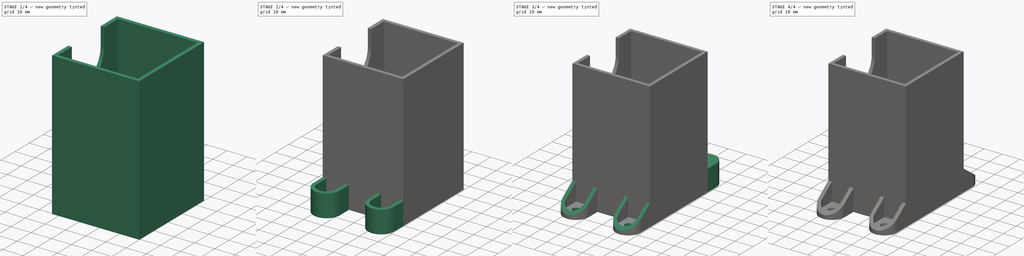
[diagram: build sequence overview — one tinted view per stage of 4, left to right]
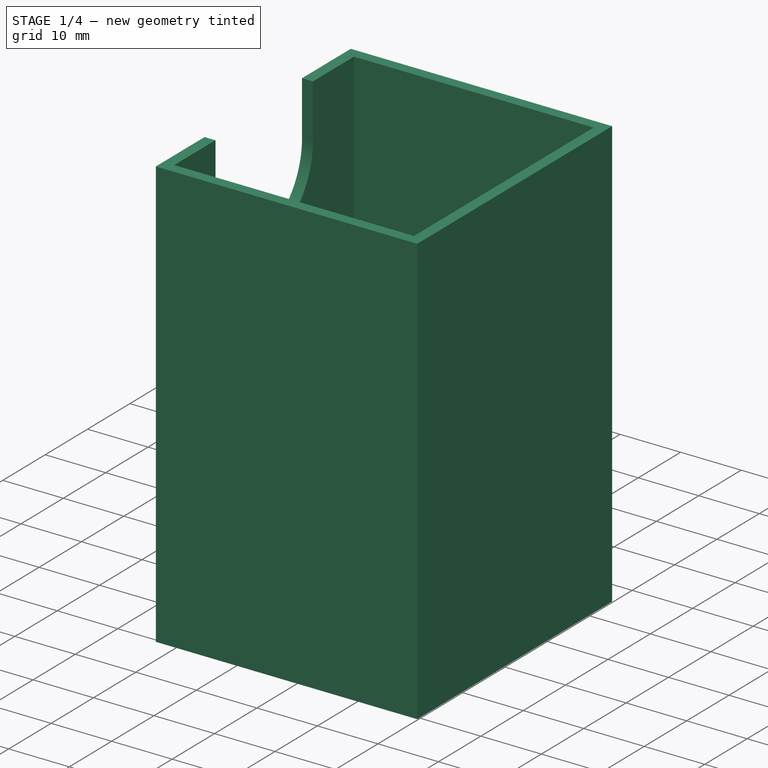
[diagram: stage 1 of 4 — iso view after this stage's code; geometry added in this stage tinted green]
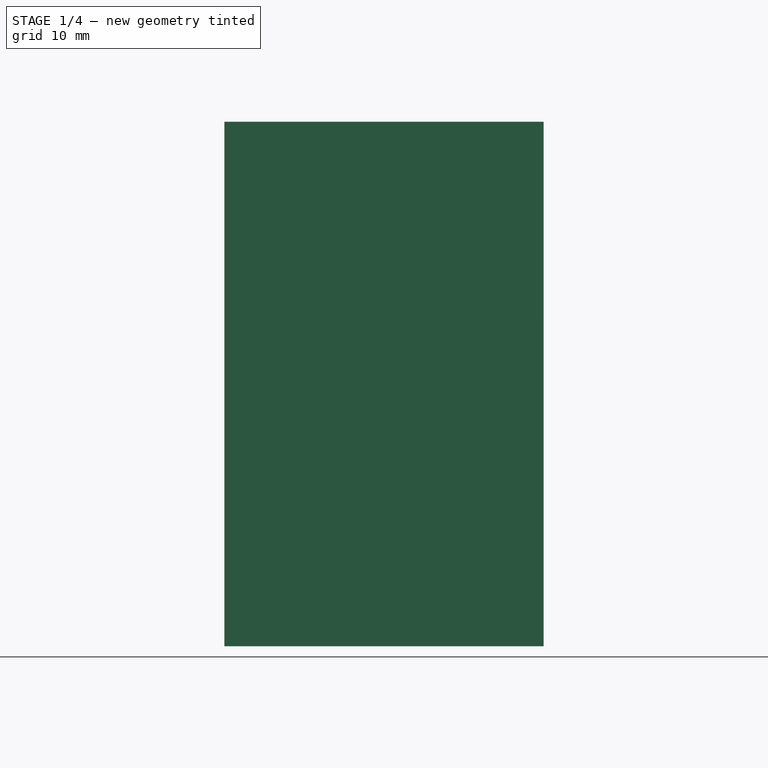
[diagram: stage 1 of 4 — front view after this stage's code; geometry added in this stage tinted green]
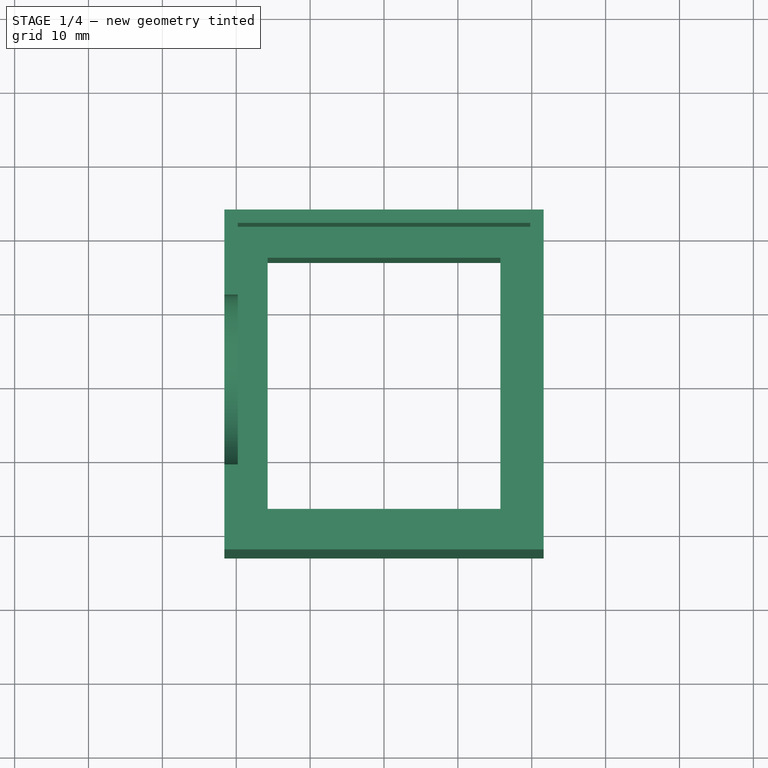
[diagram: stage 1 of 4 — top view after this stage's code; geometry added in this stage tinted green]
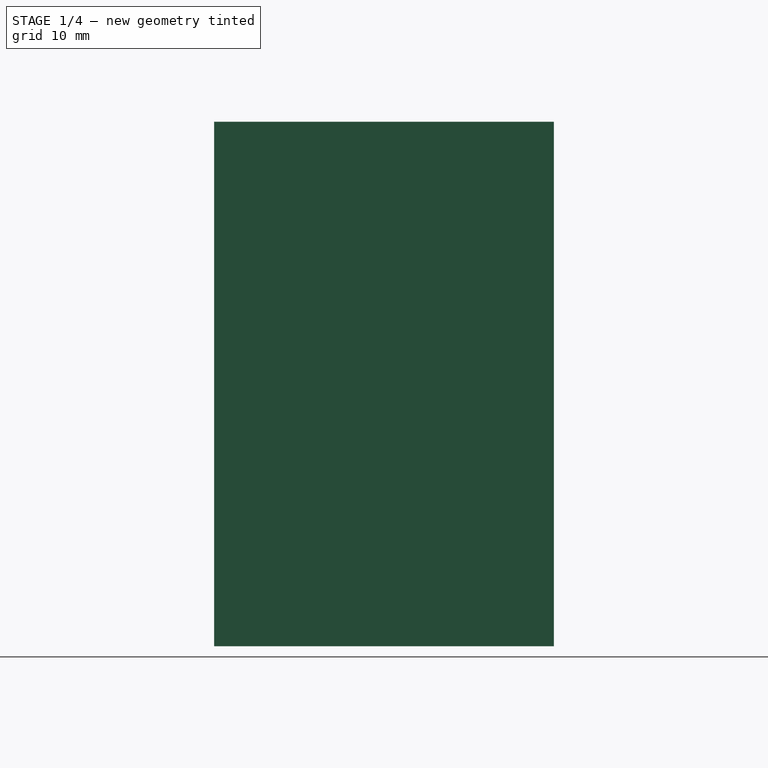
[diagram: stage 1 of 4 — right view after this stage's code; geometry added in this stage tinted green]
FCSTD DOCUMENT  (FreeCAD 0.15R4671 (Git))
Label: Motor Base
License: All rights reserved
LicenseURL: http://en.wikipedia.org/wiki/All_rights_reserved
objects: Sketcher::SketchObject×11, PartDesign::Pocket×7, PartDesign::Pad×4, PartDesign::Fillet×2
note: 35 computed .brp shape members not serialized (recipe doc carries the construction recipe); baked Part::Feature solids carry a one-line shape summary decoded from their .brp

FEATURE [Sketcher::SketchObject] Sketch
  sketch-geometry (8):
    g0: LineSegment StartX=-21.6 StartY=23 StartZ=0 EndX=21.6 EndY=23 EndZ=0
    g1: LineSegment StartX=21.6 StartY=23 StartZ=0 EndX=21.6 EndY=-23 EndZ=0
    g2: LineSegment StartX=21.6 StartY=-23 StartZ=0 EndX=-21.6 EndY=-23 EndZ=0
    g3: LineSegment StartX=-21.6 StartY=-23 StartZ=0 EndX=-21.6 EndY=23 EndZ=0
    g4: LineSegment StartX=-15.75 StartY=17 StartZ=0 EndX=15.75 EndY=17 EndZ=0
    g5: LineSegment StartX=15.75 StartY=17 StartZ=0 EndX=15.75 EndY=-17 EndZ=0
    g6: LineSegment StartX=15.75 StartY=-17 StartZ=0 EndX=-15.75 EndY=-17 EndZ=0
    g7: LineSegment StartX=-15.75 StartY=-17 StartZ=0 EndX=-15.75 EndY=17 EndZ=0
  constraints (24):
    c: Coincident(g0,g1)
    c: Coincident(g1,g2)
    c: Coincident(g2,g3)
    c: Coincident(g3,g0)
    c: Horizontal(g0)
    c: Horizontal(g2)
    c: Vertical(g1)
    c: Vertical(g3)
    c: Symmetric(g0,g0,g-2)
    c: Symmetric(g0,g1,g-1)
    c: DistanceY(g3) = 46
    c: DistanceX(g0) = 43.2
    c: Coincident(g4,g5)
    c: Coincident(g5,g6)
    c: Coincident(g6,g7)
    c: Coincident(g7,g4)
    c: Horizontal(g4)
    c: Horizontal(g6)
    c: Vertical(g5)
    c: Vertical(g7)
    c: Symmetric(g4,g4,g-2)
    c: Symmetric(g4,g6,g-1)
    c: DistanceX(g4) = 31.5
    c: DistanceY(g5) = -34
FEATURE [PartDesign::Pad] Pad
  Length = 41
  Length2 = 100
  Sketch = -> Sketch
  Type = 0
FEATURE [Sketcher::SketchObject] Sketch001
  ExternalGeometry = -> [Pad]
  Placement = pos=(0,0,41) rot=(0,0,1;0rad)
  Support = -> Pad [Face10]
  sketch-geometry (8):
    g0: LineSegment StartX=-21.6 StartY=23 StartZ=0 EndX=21.6 EndY=23 EndZ=0
    g1: LineSegment StartX=21.6 StartY=23 StartZ=0 EndX=21.6 EndY=-23 EndZ=0
    g2: LineSegment StartX=21.6 StartY=-23 StartZ=0 EndX=-21.6 EndY=-23 EndZ=0
    g3: LineSegment StartX=-21.6 StartY=-23 StartZ=0 EndX=-21.6 EndY=23 EndZ=0
    g4: LineSegment StartX=-19.8 StartY=21.2 StartZ=0 EndX=19.8 EndY=21.2 EndZ=0
    g5: LineSegment StartX=19.8 StartY=21.2 StartZ=0 EndX=19.8 EndY=-21.2 EndZ=0
    g6: LineSegment StartX=19.8 StartY=-21.2 StartZ=0 EndX=-19.8 EndY=-21.2 EndZ=0
    g7: LineSegment StartX=-19.8 StartY=-21.2 StartZ=0 EndX=-19.8 EndY=21.2 EndZ=0
  constraints (22):
    c: Coincident(g0,g1)
    c: Coincident(g1,g2)
    c: Coincident(g2,g3)
    c: Coincident(g3,g0)
    c: Horizontal(g0)
    c: Horizontal(g2)
    c: Vertical(g1)
    c: Vertical(g3)
    c: Coincident(g0,g-4)
    c: Coincident(g1,g-6)
    c: Coincident(g4,g5)
    c: Coincident(g5,g6)
    c: Coincident(g6,g7)
    c: Coincident(g7,g4)
    c: Horizontal(g4)
    c: Horizontal(g6)
    c: Vertical(g5)
    c: Vertical(g7)
    c: Symmetric(g4,g4,g-2)
    c: Symmetric(g4,g5,g-1)
    c: DistanceX(g4) = 39.6
    c: DistanceY(g5) = -42.4
FEATURE [PartDesign::Pad] Pad001
  Length = 30
  Length2 = 100
  Sketch = -> Sketch001
  Type = 0
FEATURE [Sketcher::SketchObject] Sketch002
  ExternalGeometry = -> [Pad001]
  Placement = pos=(-21.6,0,0) rot=(0.57735,-0.57735,-0.57735;2.0944rad)
  Support = -> Pad001 [Face13]
  sketch-geometry (5):
    g0: Circle [constr] CenterX=0 CenterY=62 CenterZ=0 NormalX=0 NormalY=0 NormalZ=1 Radius=11.5
    g1: LineSegment StartX=-11.5 StartY=71 StartZ=0 EndX=11.5 EndY=71 EndZ=0
    g2: LineSegment StartX=11.5 StartY=71 StartZ=0 EndX=11.5 EndY=62 EndZ=0
    g3: LineSegment StartX=-11.5 StartY=62 StartZ=0 EndX=-11.5 EndY=71 EndZ=0
    g4: ArcOfCircle CenterX=0 CenterY=62 CenterZ=0 NormalX=0 NormalY=0 NormalZ=1 Radius=11.5 StartAngle=3.14159 EndAngle=6.28319
  constraints (16):
    c: PointOnObject(g0,g-2)
    c: Radius(g0) = 11.5
    c: DistanceY(g-4,g0) = 21
    c: Coincident(g1,g2)
    c: Coincident(g3,g1)
    c: Horizontal(g1)
    c: Vertical(g2)
    c: Vertical(g3)
    c: PointOnObject(g1,g-3)
    c: PointOnObject(g2,g0)
    c: PointOnObject(g3,g0)
    c: Tangent(g0,g3)
    c: Tangent(g0,g2)
    c: Coincident(g4,g0)
    c: Coincident(g4,g3)
    c: Coincident(g4,g2)
FEATURE [PartDesign::Pocket] Pocket
  Length = 5
  Sketch = -> Sketch002
  Type = 0
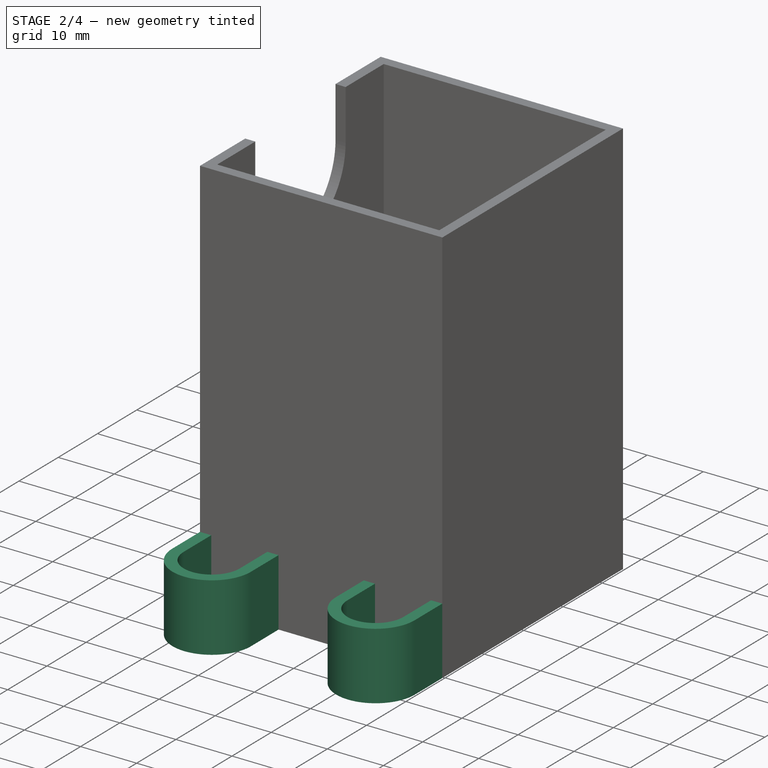
[diagram: stage 2 of 4 — iso view after this stage's code; geometry added in this stage tinted green]
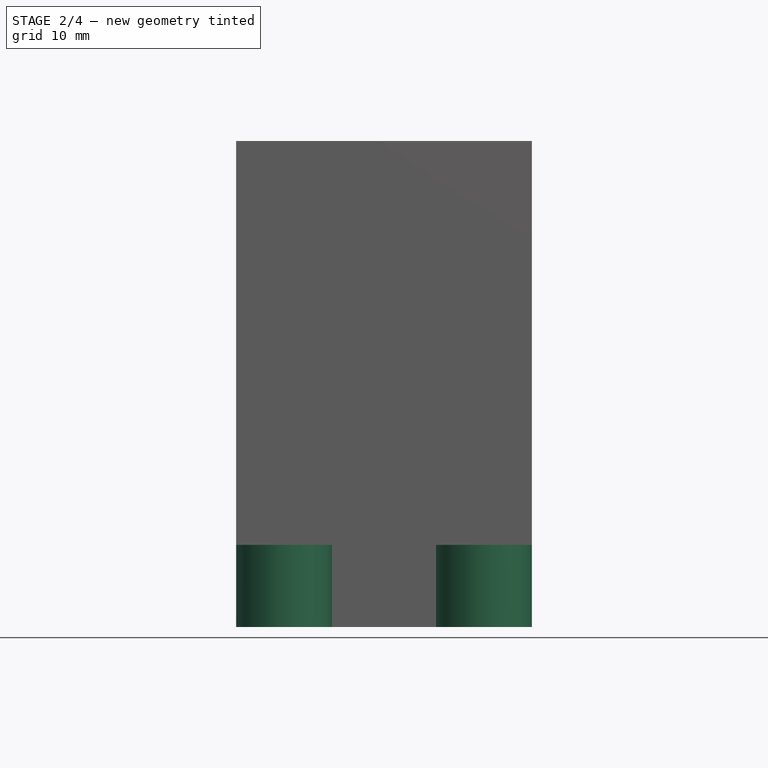
[diagram: stage 2 of 4 — front view after this stage's code; geometry added in this stage tinted green]
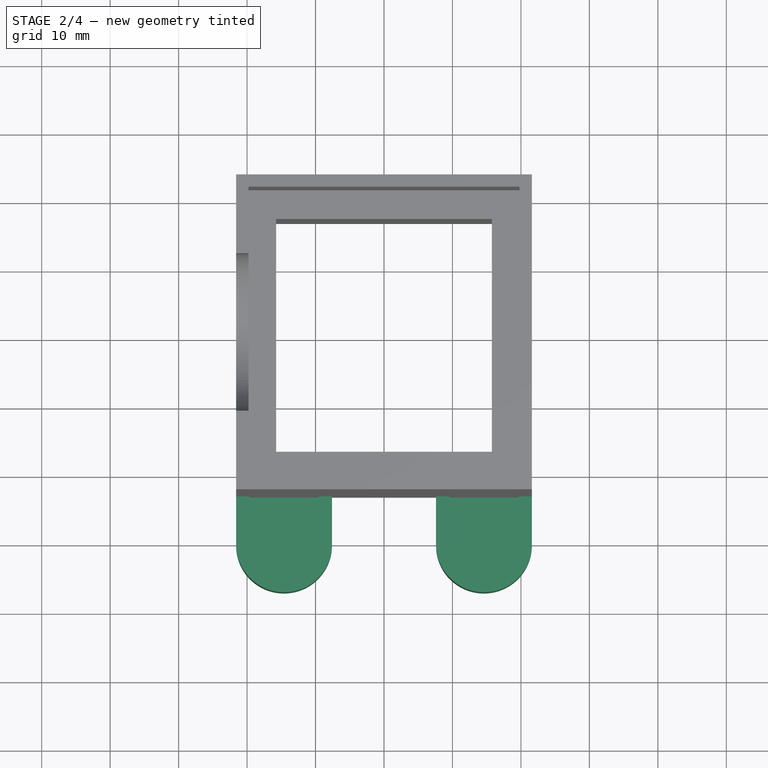
[diagram: stage 2 of 4 — top view after this stage's code; geometry added in this stage tinted green]
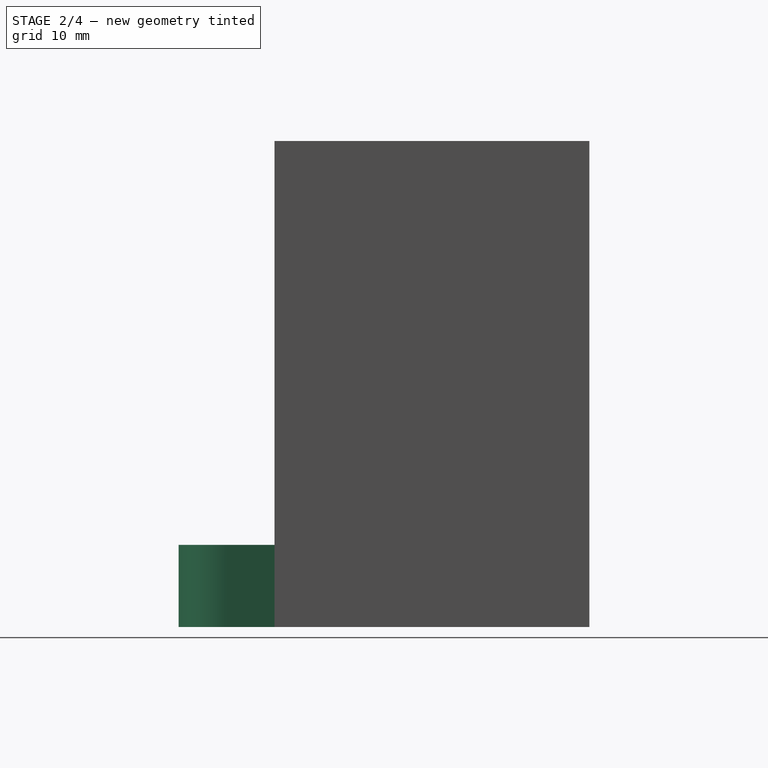
[diagram: stage 2 of 4 — right view after this stage's code; geometry added in this stage tinted green]
FEATURE [Sketcher::SketchObject] Sketch003
  ExternalGeometry = -> [Pocket]
  Placement = pos=(0,-23,0) rot=(1,0,0;1.5708rad)
  Support = -> Pocket [Face4]
  sketch-geometry (8):
    g0: LineSegment StartX=-21.6 StartY=0 StartZ=0 EndX=-7.6 EndY=0 EndZ=0
    g1: LineSegment StartX=-7.6 StartY=0 StartZ=0 EndX=-7.6 EndY=12 EndZ=0
    g2: LineSegment StartX=-7.6 StartY=12 StartZ=0 EndX=-21.6 EndY=12 EndZ=0
    g3: LineSegment StartX=-21.6 StartY=12 StartZ=0 EndX=-21.6 EndY=0 EndZ=0
    g4: LineSegment StartX=21.6 StartY=0 StartZ=0 EndX=7.6 EndY=0 EndZ=0
    g5: LineSegment StartX=7.6 StartY=0 StartZ=0 EndX=7.6 EndY=12 EndZ=0
    g6: LineSegment StartX=7.6 StartY=12 StartZ=0 EndX=21.6 EndY=12 EndZ=0
    g7: LineSegment StartX=21.6 StartY=12 StartZ=0 EndX=21.6 EndY=0 EndZ=0
  constraints (22):
    c: Coincident(g0,g1)
    c: Coincident(g1,g2)
    c: Coincident(g2,g3)
    c: Coincident(g3,g0)
    c: Horizontal(g0)
    c: Horizontal(g2)
    c: Vertical(g1)
    c: Vertical(g3)
    c: Coincident(g0,g-3)
    c: Coincident(g4,g5)
    c: Coincident(g5,g6)
    c: Coincident(g6,g7)
    c: Coincident(g7,g4)
    c: Horizontal(g4)
    c: Horizontal(g6)
    c: Vertical(g5)
    c: Vertical(g7)
    c: Coincident(g4,g-3)
    c: Equal(g1,g5)
    c: Equal(g2,g6)
    c: DistanceX(g2) = -14
    c: DistanceY(g1) = 12
FEATURE [PartDesign::Pad] Pad002
  Length = 14
  Length2 = 100
  Sketch = -> Sketch003
  Type = 0
FEATURE [PartDesign::Fillet] Fillet
  Base = -> Pad002 [Edge24,Edge64,Edge67,Edge61]
  Radius = 6.99
FEATURE [Sketcher::SketchObject] Sketch004
  ExternalGeometry = -> [Fillet]
  Placement = pos=(0,0,12) rot=(0,0,1;0rad)
  Support = -> Fillet [Face2]
  sketch-geometry (10):
    g0: Circle [constr] CenterX=-14.6 CenterY=-30.01 CenterZ=0 NormalX=0 NormalY=0 NormalZ=1 Radius=7
    g1: Circle [constr] CenterX=14.6 CenterY=-30.01 CenterZ=0 NormalX=0 NormalY=0 NormalZ=1 Radius=7
    g2: LineSegment StartX=-19.6 StartY=-23 StartZ=0 EndX=-9.6 EndY=-23 EndZ=0
    g3: LineSegment StartX=-9.6 StartY=-23 StartZ=0 EndX=-9.6 EndY=-30.01 EndZ=0
    g4: LineSegment StartX=-19.6 StartY=-30.01 StartZ=0 EndX=-19.6 EndY=-23 EndZ=0
    g5: LineSegment StartX=9.6 StartY=-23 StartZ=0 EndX=19.6 EndY=-23 EndZ=0
    g6: LineSegment StartX=19.6 StartY=-23 StartZ=0 EndX=19.6 EndY=-30.01 EndZ=0
    g7: LineSegment StartX=9.6 StartY=-30.01 StartZ=0 EndX=9.6 EndY=-23 EndZ=0
    g8: ArcOfCircle CenterX=-14.6 CenterY=-30.01 CenterZ=0 NormalX=0 NormalY=0 NormalZ=1 Radius=5 StartAngle=3.14159 EndAngle=6.28319
    g9: ArcOfCircle CenterX=14.6 CenterY=-30.01 CenterZ=0 NormalX=0 NormalY=0 NormalZ=1 Radius=5 StartAngle=3.14159 EndAngle=6.28319
  constraints (30):
    c: PointOnObject(g-3,g0)
    c: PointOnObject(g-4,g0)
    c: Tangent(g0,g-4)
    c: Tangent(g1,g-6)
    c: PointOnObject(g-6,g1)
    c: PointOnObject(g-5,g1)
    c: Coincident(g2,g3)
    c: Coincident(g4,g2)
    c: Horizontal(g2)
    c: Vertical(g3)
    c: Vertical(g4)
    c: PointOnObject(g2,g-7)
    c: Coincident(g5,g6)
    c: Coincident(g7,g5)
    c: Horizontal(g5)
    c: Vertical(g6)
    c: Vertical(g7)
    c: PointOnObject(g5,g-8)
    c: Coincident(g8,g0)
    c: Coincident(g8,g4)
    c: Coincident(g8,g3)
    c: Coincident(g9,g1)
    c: Coincident(g9,g7)
    c: Coincident(g9,g6)
    c: Tangent(g9,g7)
    c: Tangent(g9,g6)
    c: Tangent(g8,g3)
    c: Tangent(g8,g4)
    c: Radius(g8) = 5
    c: Equal(g9,g8)
FEATURE [PartDesign::Pocket] Pocket001
  Length = 10
  Sketch = -> Sketch004
  Type = 0
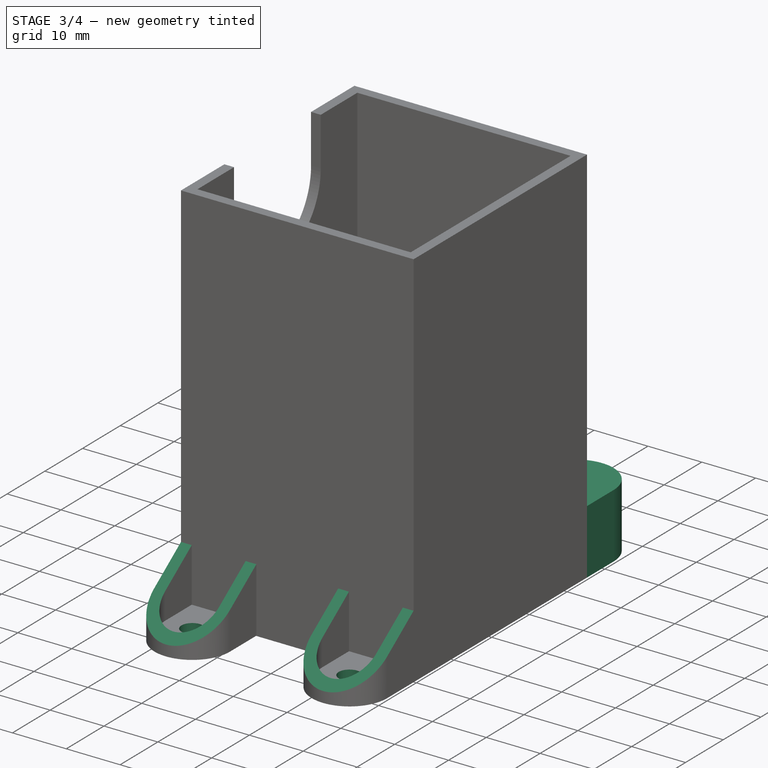
[diagram: stage 3 of 4 — iso view after this stage's code; geometry added in this stage tinted green]
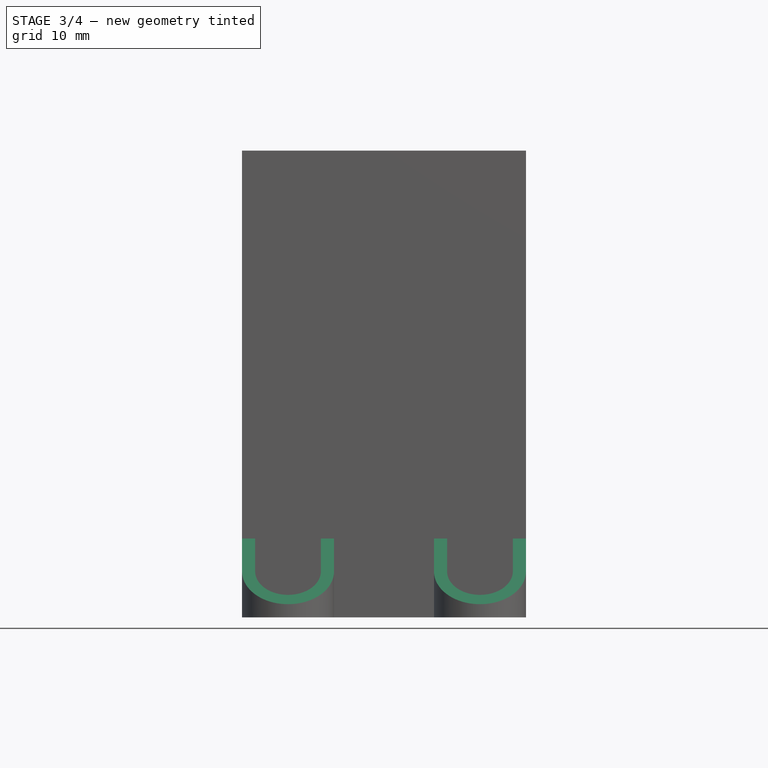
[diagram: stage 3 of 4 — front view after this stage's code; geometry added in this stage tinted green]
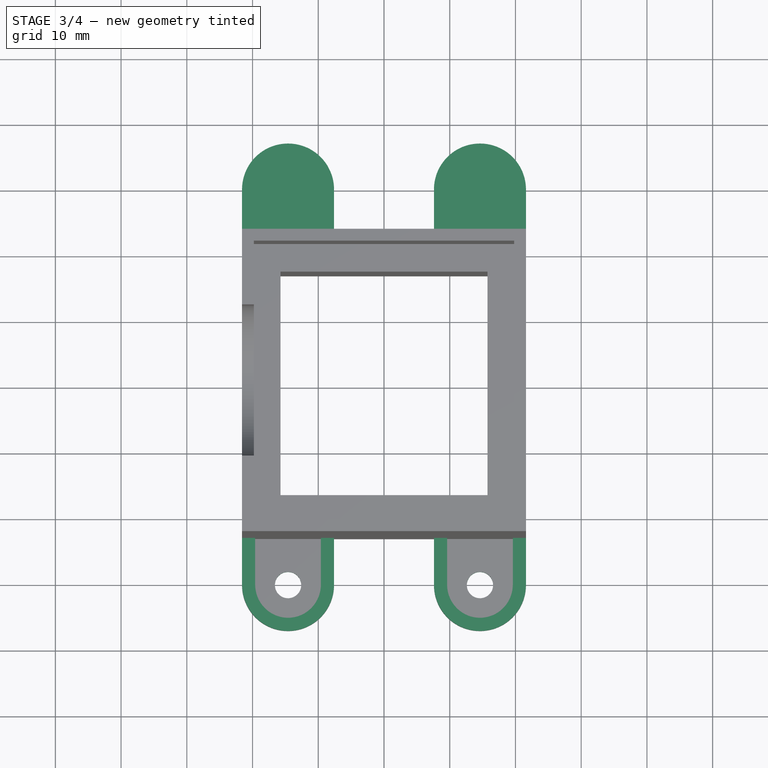
[diagram: stage 3 of 4 — top view after this stage's code; geometry added in this stage tinted green]
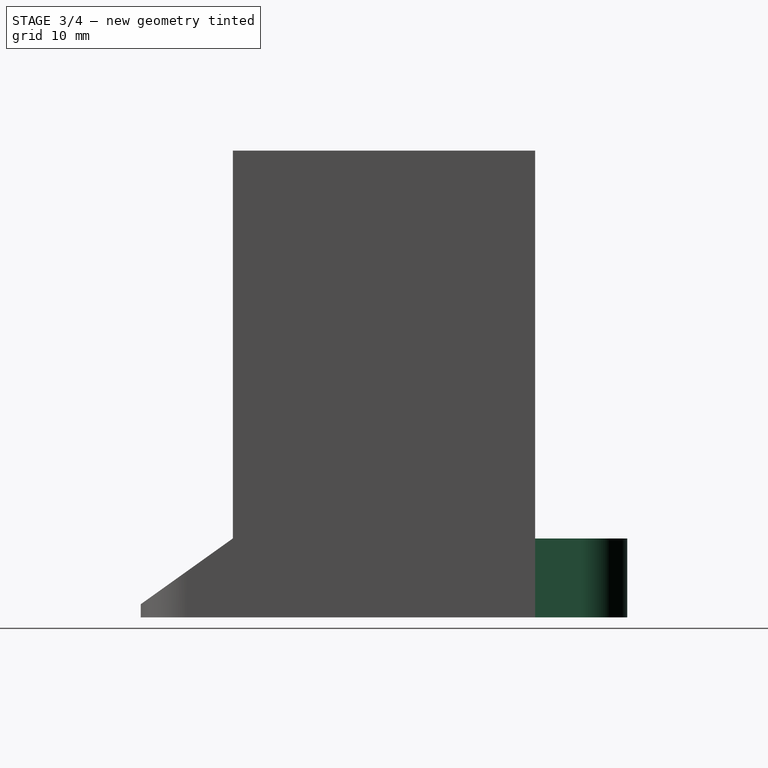
[diagram: stage 3 of 4 — right view after this stage's code; geometry added in this stage tinted green]
FEATURE [Sketcher::SketchObject] Sketch005
  ExternalGeometry = -> [Pocket001]
  Placement = pos=(-21.6,0,0) rot=(0.57735,-0.57735,-0.57735;2.0944rad)
  Support = -> Pocket001 [Face1]
  sketch-geometry (3):
    g0: LineSegment StartX=23 StartY=12 StartZ=0 EndX=37 EndY=2 EndZ=0
    g1: LineSegment StartX=37 StartY=2 StartZ=0 EndX=37 EndY=12 EndZ=0
    g2: LineSegment StartX=37 StartY=12 StartZ=0 EndX=23 EndY=12 EndZ=0
  constraints (7):
    c: Coincident(g-3,g0)
    c: PointOnObject(g0,g-4)
    c: Coincident(g0,g1)
    c: Coincident(g1,g-4)
    c: Coincident(g1,g2)
    c: Coincident(g2,g0)
    c: DistanceY(g0,g-4) = -2
FEATURE [PartDesign::Pocket] Pocket002
  Length = 5
  Sketch = -> Sketch005
  Type = 1
FEATURE [Sketcher::SketchObject] Sketch006
  ExternalGeometry = -> [Pocket002]
  Placement = pos=(0,0,2) rot=(0,0,1;0rad)
  Support = -> Pocket002 [Face43]
  sketch-geometry (2):
    g0: Circle CenterX=-14.6 CenterY=-30.01 CenterZ=0 NormalX=0 NormalY=0 NormalZ=1 Radius=2
    g1: Circle CenterX=14.6 CenterY=-30.01 CenterZ=0 NormalX=0 NormalY=0 NormalZ=1 Radius=2
  constraints (4):
    c: Coincident(g0,g-4)
    c: Coincident(g1,g-3)
    c: Equal(g1,g0)
    c: Radius(g1) = 2
FEATURE [PartDesign::Pocket] Pocket003
  Length = 5
  Sketch = -> Sketch006
  Type = 1
FEATURE [Sketcher::SketchObject] Sketch007
  ExternalGeometry = -> [Pocket003]
  Placement = pos=(0,23,0) rot=(0,0.707107,0.707107;3.14159rad)
  Support = -> Pocket003 [Face8]
  sketch-geometry (8):
    g0: LineSegment StartX=-21.6 StartY=12 StartZ=0 EndX=-7.6 EndY=12 EndZ=0
    g1: LineSegment StartX=-7.6 StartY=12 StartZ=0 EndX=-7.6 EndY=0 EndZ=0
    g2: LineSegment StartX=-7.6 StartY=0 StartZ=0 EndX=-21.6 EndY=0 EndZ=0
    g3: LineSegment StartX=-21.6 StartY=0 StartZ=0 EndX=-21.6 EndY=12 EndZ=0
    g4: LineSegment StartX=7.6 StartY=12 StartZ=0 EndX=21.6 EndY=12 EndZ=0
    g5: LineSegment StartX=21.6 StartY=12 StartZ=0 EndX=21.6 EndY=0 EndZ=0
    g6: LineSegment StartX=21.6 StartY=0 StartZ=0 EndX=7.6 EndY=0 EndZ=0
    g7: LineSegment StartX=7.6 StartY=0 StartZ=0 EndX=7.6 EndY=12 EndZ=0
  constraints (20):
    c: Coincident(g0,g1)
    c: Coincident(g1,g2)
    c: Coincident(g2,g3)
    c: Coincident(g3,g0)
    c: Horizontal(g0)
    c: Horizontal(g2)
    c: Vertical(g1)
    c: Vertical(g3)
    c: Coincident(g0,g-8)
    c: Coincident(g1,g-7)
    c: Coincident(g4,g5)
    c: Coincident(g5,g6)
    c: Coincident(g6,g7)
    c: Coincident(g7,g4)
    c: Horizontal(g4)
    c: Horizontal(g6)
    c: Vertical(g5)
    c: Vertical(g7)
    c: Coincident(g4,g-3)
    c: Coincident(g5,g-6)
FEATURE [PartDesign::Pad] Pad003
  Length = 14
  Length2 = 100
  Sketch = -> Sketch007
  Type = 0
FEATURE [PartDesign::Fillet] Fillet001
  Base = -> Pad003 [Edge131,Edge128,Edge110,Edge44]
  Radius = 6.99
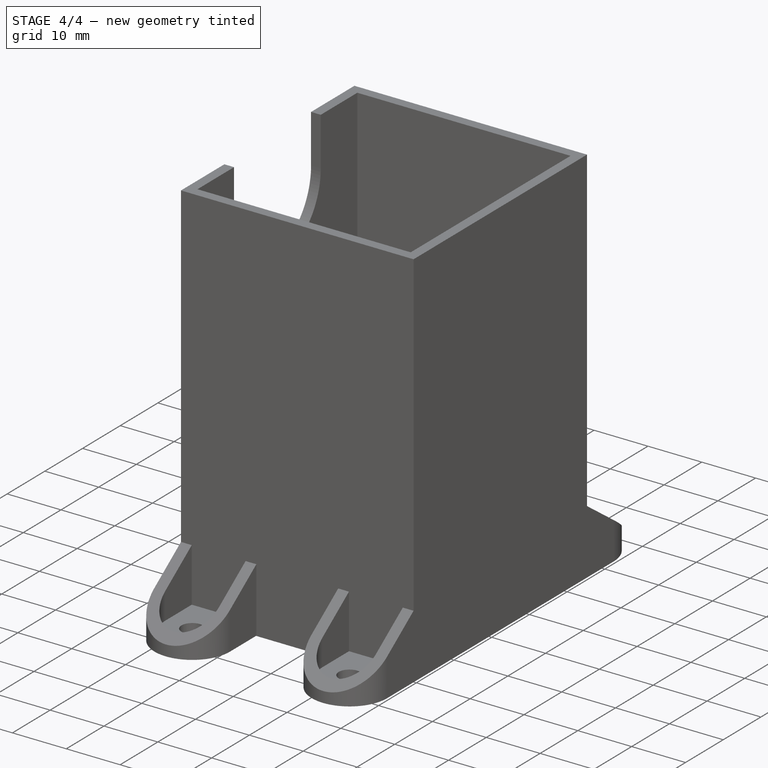
[diagram: stage 4 of 4 — iso view after this stage's code; geometry added in this stage tinted green]
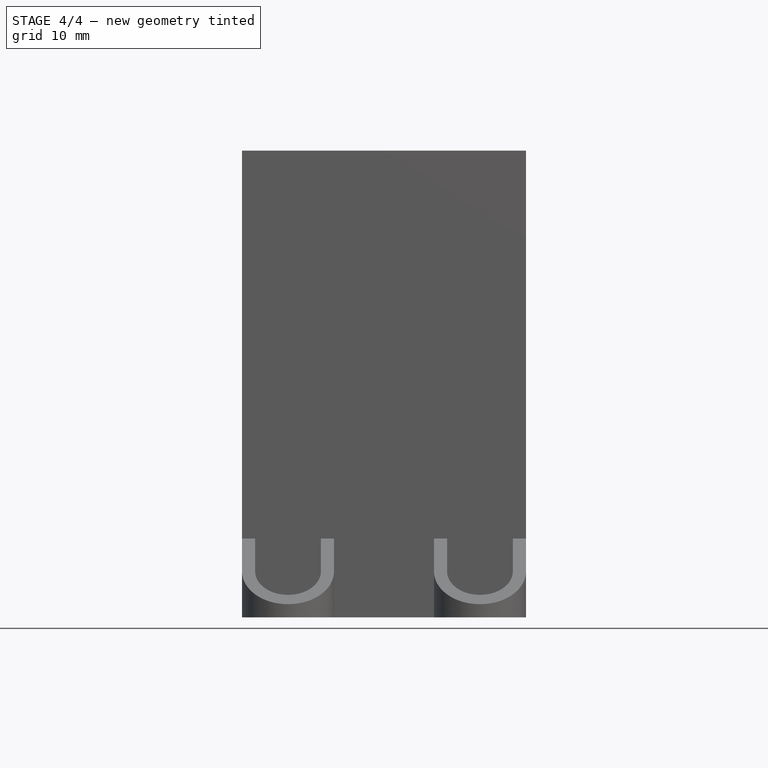
[diagram: stage 4 of 4 — front view after this stage's code; geometry added in this stage tinted green]
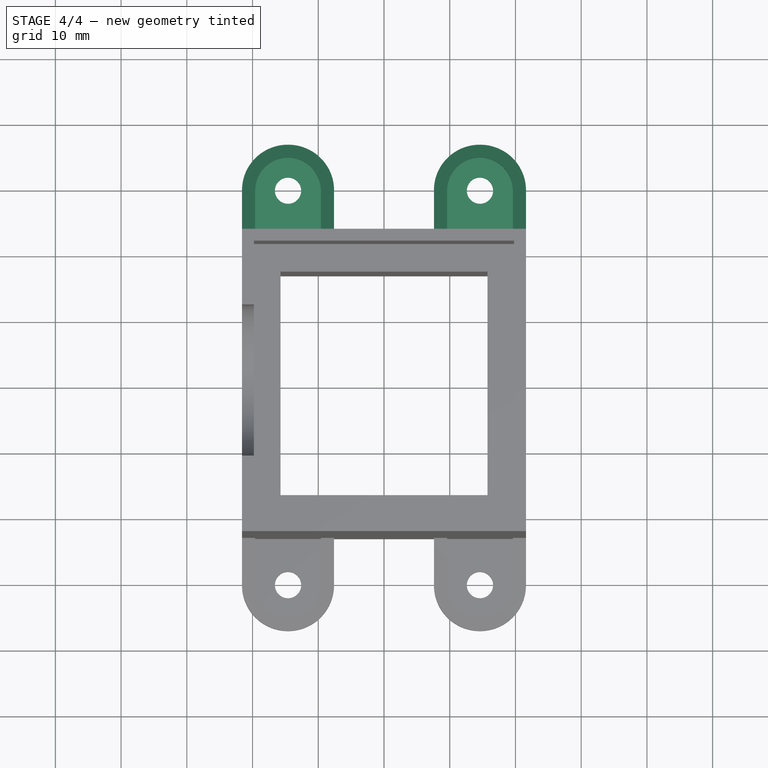
[diagram: stage 4 of 4 — top view after this stage's code; geometry added in this stage tinted green]
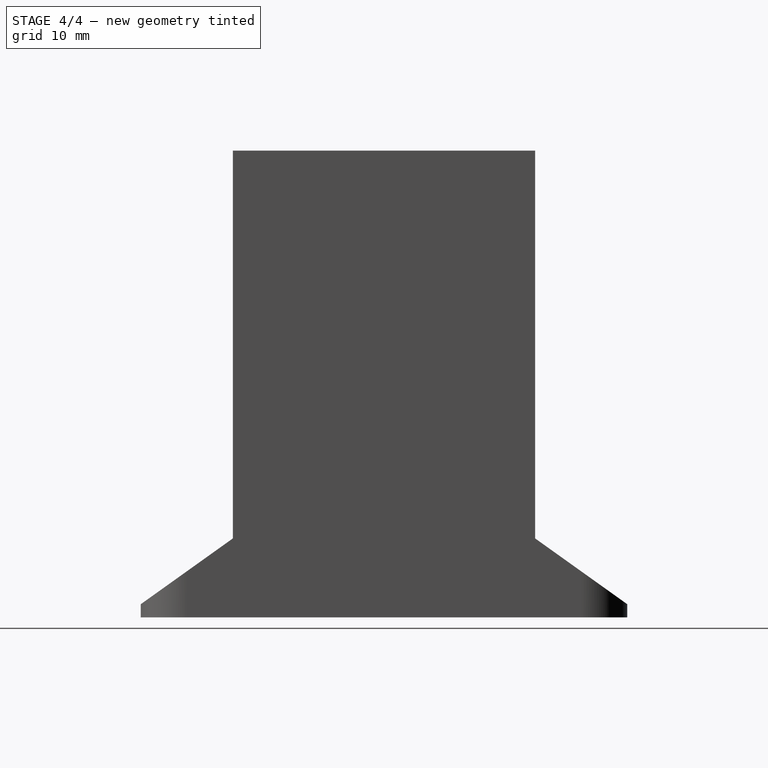
[diagram: stage 4 of 4 — right view after this stage's code; geometry added in this stage tinted green]
FEATURE [Sketcher::SketchObject] Sketch008
  ExternalGeometry = -> [Fillet001]
  Placement = pos=(0,0,12) rot=(0,0,1;0rad)
  Support = -> Fillet001 [Face15]
  sketch-geometry (10):
    g0: Circle [constr] CenterX=-14.6 CenterY=30.01 CenterZ=0 NormalX=0 NormalY=0 NormalZ=1 Radius=5
    g1: Circle [constr] CenterX=14.6 CenterY=30.01 CenterZ=0 NormalX=0 NormalY=0 NormalZ=1 Radius=5
    g2: LineSegment StartX=-19.6 StartY=23 StartZ=0 EndX=-9.6 EndY=23 EndZ=0
    g3: LineSegment StartX=-9.6 StartY=23 StartZ=0 EndX=-9.6 EndY=30.01 EndZ=0
    g4: LineSegment StartX=-19.6 StartY=30.01 StartZ=0 EndX=-19.6 EndY=23 EndZ=0
    g5: LineSegment StartX=19.6 StartY=30.01 StartZ=0 EndX=19.6 EndY=23 EndZ=0
    g6: LineSegment StartX=19.6 StartY=23 StartZ=0 EndX=9.6 EndY=23 EndZ=0
    g7: LineSegment StartX=9.6 StartY=23 StartZ=0 EndX=9.6 EndY=30.01 EndZ=0
    g8: ArcOfCircle CenterX=14.6 CenterY=30.01 CenterZ=0 NormalX=0 NormalY=0 NormalZ=1 Radius=5 StartAngle=6.28318 EndAngle=9.42478
    g9: ArcOfCircle CenterX=-14.6 CenterY=30.01 CenterZ=0 NormalX=0 NormalY=0 NormalZ=1 Radius=5 StartAngle=6.28318 EndAngle=9.42478
  constraints (30):
    c: Symmetric(g0,g-3,g-1)
    c: Symmetric(g1,g-4,g-1)
    c: Equal(g0,g1)
    c: Radius(g1) = 5
    c: Coincident(g2,g3)
    c: Coincident(g4,g2)
    c: Horizontal(g2)
    c: Vertical(g3)
    c: Vertical(g4)
    c: PointOnObject(g2,g-5)
    c: PointOnObject(g3,g0)
    c: PointOnObject(g4,g0)
    c: Tangent(g4,g0)
    c: Tangent(g3,g0)
    c: Coincident(g5,g6)
    c: Coincident(g6,g7)
    c: Horizontal(g6)
    c: Vertical(g5)
    c: Vertical(g7)
    c: PointOnObject(g7,g1)
    c: PointOnObject(g5,g-6)
    c: Tangent(g7,g1)
    c: Tangent(g5,g1)
    c: PointOnObject(g5,g1)
    c: Coincident(g8,g1)
    c: Coincident(g8,g7)
    c: Coincident(g8,g5)
    c: Coincident(g9,g0)
    c: Coincident(g9,g4)
    c: Coincident(g9,g3)
FEATURE [PartDesign::Pocket] Pocket004
  Length = 10
  Sketch = -> Sketch008
  Type = 0
FEATURE [Sketcher::SketchObject] Sketch009
  ExternalGeometry = -> [Pocket004]
  Placement = pos=(-21.6,0,0) rot=(0.57735,-0.57735,-0.57735;2.0944rad)
  Support = -> Pocket004 [Face1]
  sketch-geometry (3):
    g0: LineSegment StartX=-23 StartY=12 StartZ=0 EndX=-37 EndY=2 EndZ=0
    g1: LineSegment StartX=-37 StartY=2 StartZ=0 EndX=-37 EndY=12 EndZ=0
    g2: LineSegment StartX=-37 StartY=12 StartZ=0 EndX=-23 EndY=12 EndZ=0
  constraints (7):
    c: Coincident(g-3,g0)
    c: PointOnObject(g0,g-4)
    c: Coincident(g0,g1)
    c: Coincident(g1,g-4)
    c: Coincident(g1,g2)
    c: Coincident(g2,g0)
    c: DistanceY(g0,g-4) = -2
FEATURE [PartDesign::Pocket] Pocket005
  Length = 5
  Sketch = -> Sketch009
  Type = 1
FEATURE [Sketcher::SketchObject] Sketch010
  ExternalGeometry = -> [Pocket005]
  Placement = pos=(0,0,2) rot=(0,0,1;0rad)
  Support = -> Pocket005 [Face74]
  sketch-geometry (2):
    g0: Circle CenterX=-14.6 CenterY=30.01 CenterZ=0 NormalX=0 NormalY=0 NormalZ=1 Radius=2
    g1: Circle CenterX=14.6 CenterY=30.01 CenterZ=0 NormalX=0 NormalY=0 NormalZ=1 Radius=2
  constraints (4):
    c: Coincident(g0,g-3)
    c: Coincident(g1,g-4)
    c: Equal(g1,g0)
    c: Radius(g0) = 2
FEATURE [PartDesign::Pocket] Pocket006
  Length = 5
  Sketch = -> Sketch010
  Type = 1
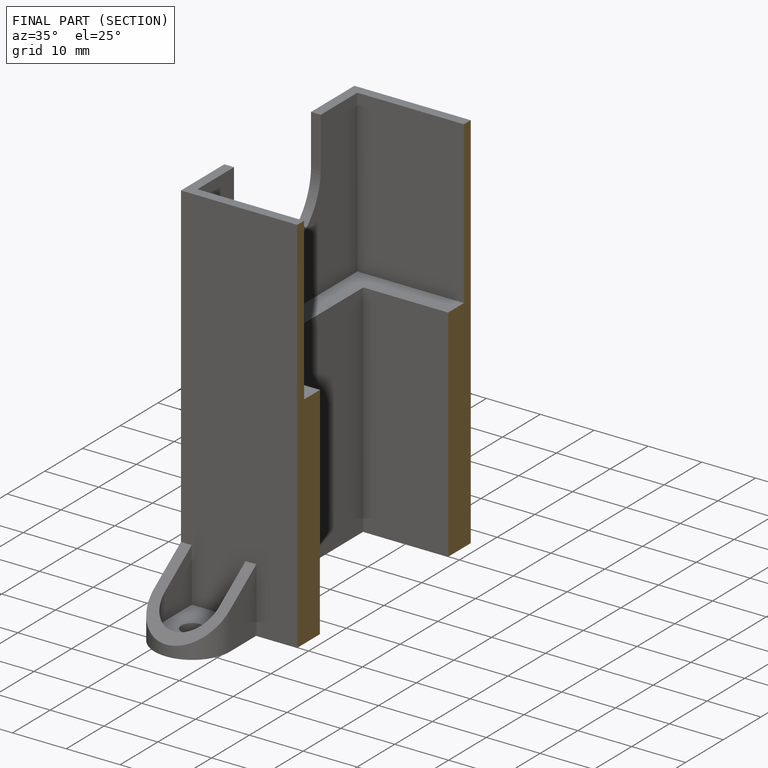
[diagram: finished part — half-section view (interior)]
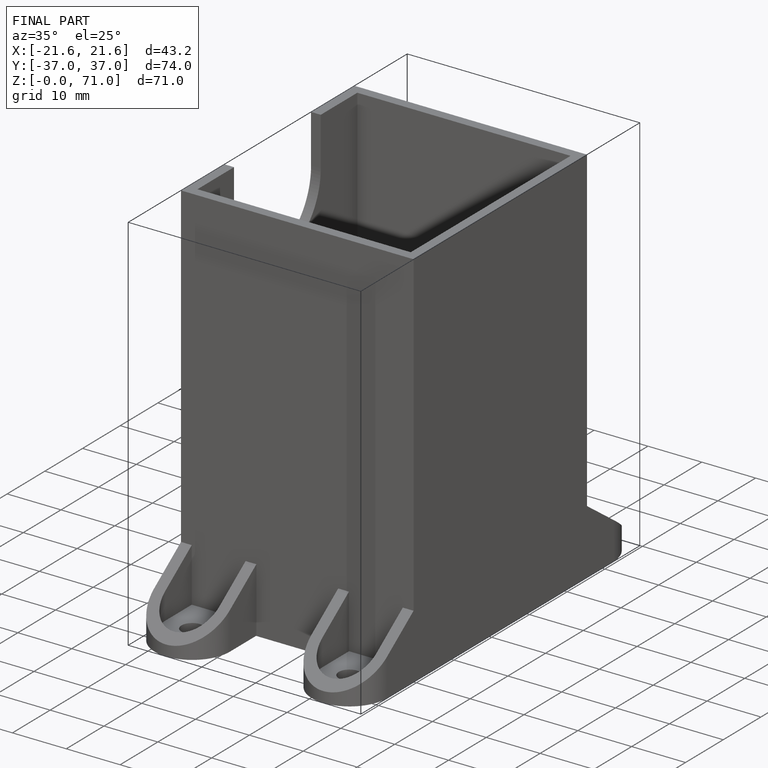
[diagram: finished part — iso view with bounding-box wireframe]
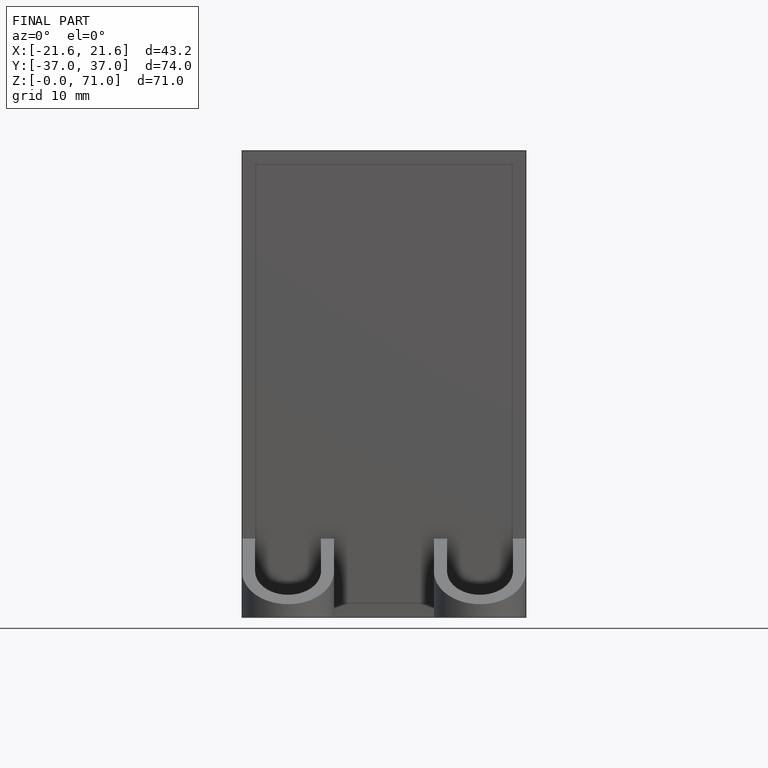
[diagram: finished part — front view with bounding-box wireframe]
